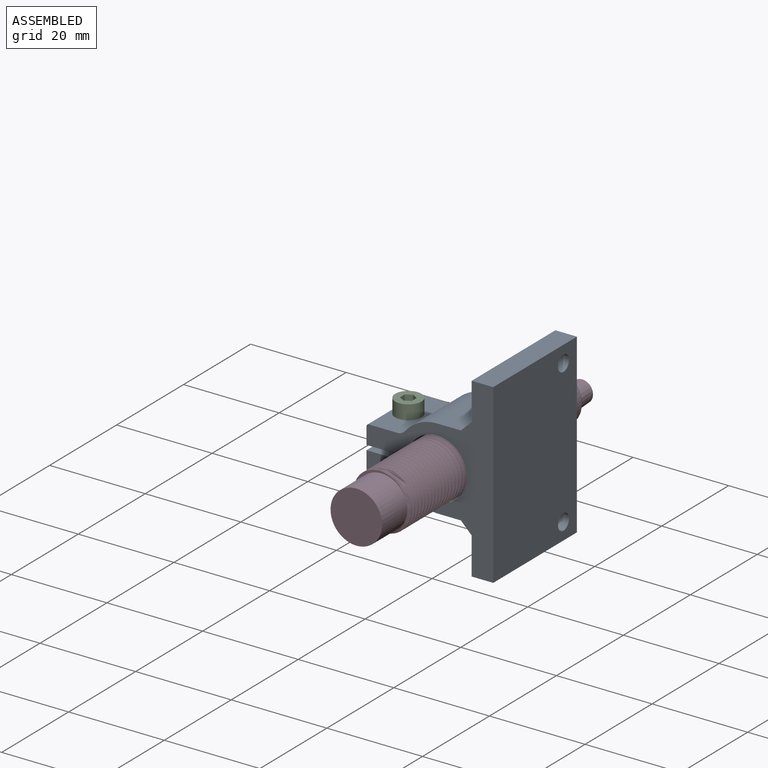
[diagram: assembled view]
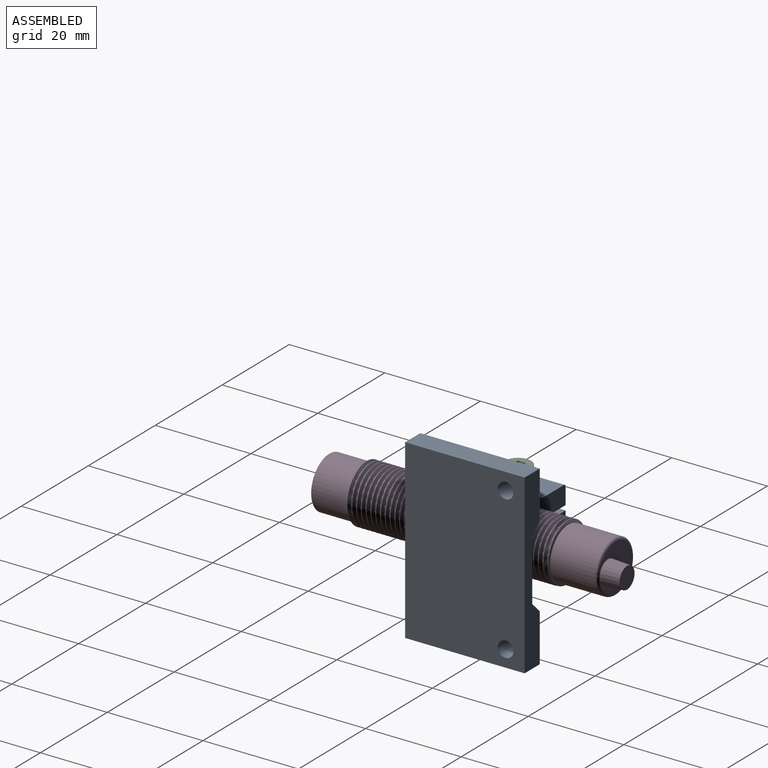
[diagram: assembled view, second angle]
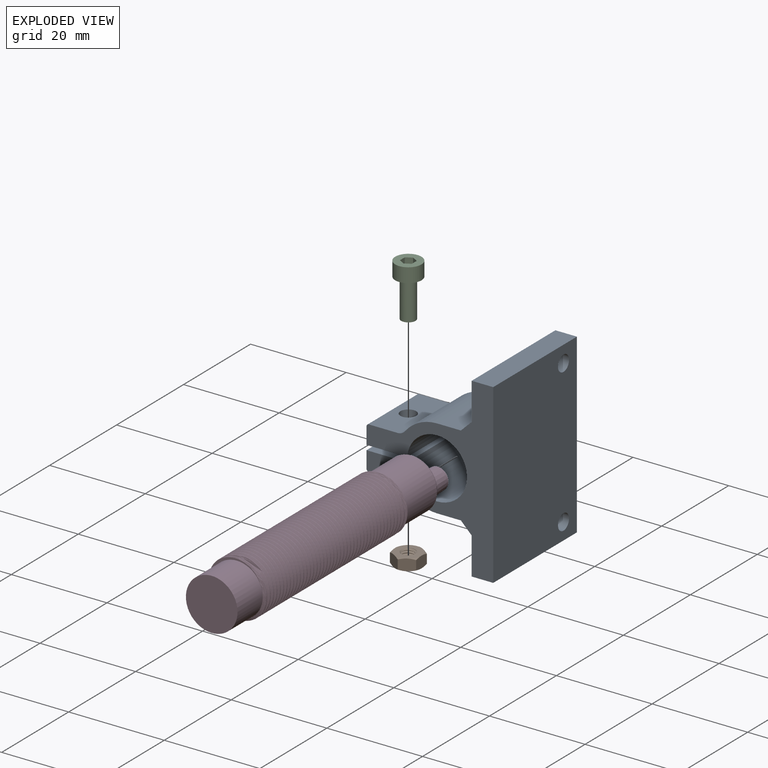
[diagram: exploded view]
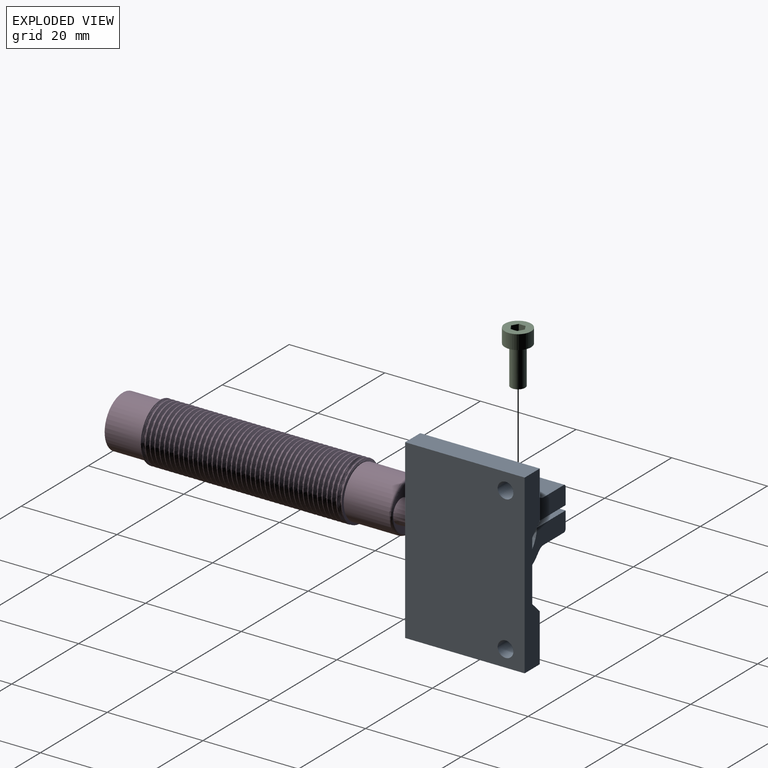
[diagram: exploded view, second angle]
ASSEMBLY  parts=4 mates=3
PART A: 39 faces, bbox 26.5x25x37 mm
  f0: plane 15x6mm, normal (0,0,-1), area 61.9mm2, adj f2,f8,f9,f23,f30,f31,f32,f33
  f1: plane 37x25mm, normal (1,0,0), area 907.9mm2, adj f3,f22,f23,f27,f28,f29
  f2: plane 24.25x21.5mm, normal (0,1,0), area 203.9mm2, adj f0,f4,f5,f6,f7,f8,f9,f10
  f3: plane 25x4.5mm, normal (0,0,-1), area 112.5mm2, adj f1,f4,f23,f27
  f4: plane 25x10mm, normal (-1,0,0), area 207.7mm2, adj f2,f3,f5,f23,f24,f27,f29
  f5: plane 15x2.25mm, normal (-0.71,0,-0.71), area 47.7mm2, adj f2,f4,f6,f23
  f6: plane 15x5mm, normal (0,0,-1), area 75mm2, adj f2,f5,f7,f23
  f7: cylinder r=8.5mm len=15mm, axis (0,1,0), area 115.2mm2, adj f2,f6,f8,f23
  f8: cylinder r=2mm len=15mm, axis (0,1,0), area 27.1mm2, adj f0,f2,f7,f23
  f9: cylinder r=0.5mm len=15mm, axis (0,1,0), area 11.8mm2, adj f0,f2,f10,f23
  f10: plane 15x3.5mm, normal (-1,0,0), area 52.5mm2, adj f2,f9,f11,f23
  f11: plane 15x8.52mm, normal (0,0,1), area 119.2mm2, adj f2,f10,f12,f23,f37
  f12: cylinder r=6.25mm len=15mm, axis (0,1,0), area 574mm2, adj f2,f11,f13,f23
  f13: plane 15x8.52mm, normal (0,0,-1), area 119.2mm2, adj f2,f12,f14,f23,f38
  f14: plane 15x3.5mm, normal (-1,0,0), area 52.5mm2, adj f2,f13,f15,f23
  f15: cylinder r=0.5mm len=15mm, axis (0,1,0), area 11.8mm2, adj f2,f14,f16,f23
  f16: plane 15x6mm, normal (0,0,1), area 81.4mm2, adj f2,f15,f17,f23,f38
  f17: cylinder r=2mm len=15mm, axis (0,1,0), area 27.1mm2, adj f2,f16,f18,f23
  f18: cylinder r=8.5mm len=15mm, axis (0,1,0), area 115.2mm2, adj f2,f17,f19,f23
  f19: plane 15x5mm, normal (0,0,1), area 75mm2, adj f2,f18,f20,f23
  f20: plane 15x2.25mm, normal (-0.71,0,0.71), area 47.7mm2, adj f2,f19,f21,f23
  f21: plane 25x10mm, normal (-1,0,0), area 207.7mm2, adj f2,f20,f22,f23,f26,f27,f28
  f22: plane 25x4.5mm, normal (0,0,1), area 112.5mm2, adj f1,f21,f23,f27
  f23: plane 37x26.5mm, normal (0,-1,0), area 337.2mm2, adj f0,f1,f3,f4,f5,f6,f7,f8
  f24: plane 10x2.25mm, normal (-0.71,0,0.71), area 31.8mm2, adj f2,f4,f25,f27
  f25: plane 12.5x10mm, normal (-1,0,0), area 125mm2, adj f2,f24,f26,f27
  f26: plane 10x2.25mm, normal (-0.71,0,-0.71), area 31.8mm2, adj f2,f21,f25,f27
  f27: plane 37x4.5mm, normal (0,1,0), area 133.3mm2, adj f1,f3,f4,f21,f22,f24,f25,f26
  f28: cylinder r=1.65mm len=4.5mm, axis (1,0,0), area 46.7mm2, adj f1,f21
  f29: cylinder r=1.65mm len=4.5mm, axis (1,0,0), area 46.7mm2, adj f1,f4
  f30: plane 3.29x2.5mm, normal (1,0,0), area 8.2mm2, adj f0,f31,f35,f36
  f31: plane 2.85x2.5mm, normal (0.5,-0.87,0), area 8.2mm2, adj f0,f30,f32,f36
  f32: plane 2.85x2.5mm, normal (-0.5,-0.87,0), area 8.2mm2, adj f0,f31,f33,f36
  f33: plane 3.29x2.5mm, normal (-1,0,0), area 8.2mm2, adj f0,f32,f34,f36
  f34: plane 2.85x2.5mm, normal (-0.5,0.87,0), area 8.2mm2, adj f0,f33,f35,f36
  f35: plane 2.85x2.5mm, normal (0.5,0.87,0), area 8.2mm2, adj f0,f30,f34,f36
  f36: plane 6.58x5.7mm, normal (0,0,-1), area 19.6mm2, adj f30,f31,f32,f33,f34,f35,f37
  f37: cylinder r=1.65mm len=3.3mm, axis (0,0,-1), area 15.6mm2, adj f11,f36
  f38: cylinder r=1.65mm len=4mm, axis (0,0,-1), area 41.5mm2, adj f13,f16
PART B: 27 faces, bbox 6.6x6.6x3 mm
  f0: cylinder r=1.5mm len=3mm, axis (0,0,-1), area 2.8mm2, adj f10,f11,f12,f13,f14
  f1: cylinder r=1.18mm len=2.35mm, axis (0,0,1), area 1.6mm2, adj f2,f3,f13,f14
  f2: cone r=1.5mm half-angle=45deg, axis (0,0,-1), area 2mm2, adj f1,f11,f13,f14
  f3: cone r=1.5mm half-angle=45deg, axis (0,0,1), area 2mm2, adj f1,f10,f12,f13,f14
  f4: plane 3.01x2.66mm, normal (-0.5,0.87,0), area 7.1mm2, adj f5,f9,f18,f19,f22,f23
  f5: plane 3.44x2.66mm, normal (-1,0,0), area 7.1mm2, adj f4,f6,f17,f18,f23,f24
  f6: plane 3.01x2.66mm, normal (-0.5,-0.87,0), area 7.1mm2, adj f5,f7,f16,f17,f24,f25
  f7: plane 3.01x2.66mm, normal (0.5,-0.87,0), area 7.1mm2, adj f6,f8,f15,f16,f25,f26
  f8: plane 3.44x2.66mm, normal (1,0,0), area 7.1mm2, adj f7,f9,f15,f20,f21,f26
  f9: plane 3.01x2.66mm, normal (0.5,0.87,0), area 7.1mm2, adj f4,f8,f19,f20,f21,f22
  f10: plane 5.5x5.5mm, normal (0,0,1), area 16.7mm2, adj f0,f3,f15,f16,f17,f18,f19,f20
  f11: plane 5.5x5.5mm, normal (0,0,-1), area 16.7mm2, adj f0,f2,f21,f22,f23,f24,f25,f26
  f12: plane 0x0mm, normal (0.5,0.87,0), area 0mm2, adj f0,f3,f13
  f13: bspline ~3x3mm, area 13.2mm2, adj f0,f1,f2,f3,f12
  f14: bspline ~3x3mm, area 13.2mm2, adj f0,f1,f2,f3
  f15: cone r=2.75mm half-angle=60deg, axis (0,0,-1), area 0.7mm2, adj f7,f8,f10
  f16: cone r=2.75mm half-angle=60deg, axis (0,0,-1), area 0.7mm2, adj f6,f7,f10
  f17: cone r=2.75mm half-angle=60deg, axis (0,0,-1), area 0.7mm2, adj f5,f6,f10
  f18: cone r=2.75mm half-angle=60deg, axis (0,0,-1), area 0.7mm2, adj f4,f5,f10
  f19: cone r=2.75mm half-angle=60deg, axis (0,0,-1), area 0.7mm2, adj f4,f9,f10
  f20: cone r=2.75mm half-angle=60deg, axis (0,0,-1), area 0.7mm2, adj f8,f9,f10
  f21: cone r=2.75mm half-angle=60deg, axis (0,0,1), area 0.7mm2, adj f8,f9,f11
  f22: cone r=2.75mm half-angle=60deg, axis (0,0,1), area 0.7mm2, adj f4,f9,f11
  f23: cone r=2.75mm half-angle=60deg, axis (0,0,1), area 0.7mm2, adj f4,f5,f11
  f24: cone r=2.75mm half-angle=60deg, axis (0,0,1), area 0.7mm2, adj f5,f6,f11
  f25: cone r=2.75mm half-angle=60deg, axis (0,0,1), area 0.7mm2, adj f6,f7,f11
  f26: cone r=2.75mm half-angle=60deg, axis (0,0,1), area 0.7mm2, adj f7,f8,f11
PART C: 12 faces, bbox 5.5x5.5x11 mm
  f0: plane 5.5x5.5mm, normal (0,0,1), area 18.3mm2, adj f1,f5,f6,f7,f8,f9,f10
  f1: cylinder r=2.75mm len=5.5mm, axis (0,0,-1), area 51.8mm2, adj f0,f2
  f2: plane 5.5x5.5mm, normal (0,0,-1), area 16.7mm2, adj f1,f3
  f3: cylinder r=1.5mm len=8mm, axis (0,0,-1), area 75.4mm2, adj f2,f4
  f4: plane 3x3mm, normal (0,0,-1), area 7.1mm2, adj f3
  f5: plane 1.3x1.25mm, normal (-0.5,-0.87,0), area 1.9mm2, adj f0,f6,f10,f11
  f6: plane 1.44x1.3mm, normal (-1,0,0), area 1.9mm2, adj f0,f5,f7,f11
  f7: plane 1.3x1.25mm, normal (-0.5,0.87,0), area 1.9mm2, adj f0,f6,f8,f11
  f8: plane 1.3x1.25mm, normal (0.5,0.87,0), area 1.9mm2, adj f0,f7,f9,f11
  f9: plane 1.44x1.3mm, normal (1,0,0), area 1.9mm2, adj f0,f8,f10,f11
  f10: plane 1.3x1.25mm, normal (0.5,-0.87,0), area 1.9mm2, adj f0,f5,f9,f11
  f11: plane 2.89x2.5mm, normal (0,0,1), area 5.4mm2, adj f5,f6,f7,f8,f9,f10
PART D: 13 faces, bbox 12.3x14.1x64.3 mm
  f0: cylinder r=5.4mm len=10.8mm, axis (0,0,-1), area 254.5mm2, adj f1,f3
  f1: plane 10.8x10.8mm, normal (0,0,-1), area 91.6mm2, adj f0
  f2: plane 11.7x11.66mm, normal (0,0,1), area 10.1mm2, adj f4,f6,f7,f8,f9
  f3: plane 11.7x11.66mm, normal (0,0,-1), area 10.1mm2, adj f0,f4,f7,f8,f9
  f4: cylinder r=6mm len=42.5mm, axis (0,0,-1), area -274.6mm2, adj f2,f3,f8,f9
  f5: plane 9.8x9.8mm, normal (0,0,1), area 56.6mm2, adj f10,f11
  f6: cylinder r=5.4mm len=10.8mm, axis (0,0,-1), area 322.3mm2, adj f2,f10
  f7: bspline ~43.25x12.61mm, area 407.2mm2, adj f2,f3,f8,f9
  f8: bspline ~43.31x13.86mm, area 958.3mm2, adj f2,f3,f4,f7
  f9: bspline ~43.15x13.86mm, area 953.6mm2, adj f2,f3,f4,f7
  f10: torus R=4.9mm, axis (0,0,1), area 25.8mm2, adj f5,f6
  f11: cone r=2.45mm half-angle=3deg, axis (0,0,-1), area 59mm2, adj f5,f12
  f12: plane 4.48x4.48mm, normal (0,0,1), area 15.8mm2, adj f11
PLACE A at identity
PLACE B rot(axis=(0,1,0),180deg) t=(-45.16,-19.72,16.4)mm
PLACE C t=(-65.16,-19.72,24.1)mm
PLACE D rot(axis=(-1,0,0),90deg) t=(-33.91,-51.32,19.6)mm
MATE fastened B.f0 <-> A.f37  axis (0,0,1) through (-45.16,-19.72,17.6)mm
MATE slider D.f0 <-> A.f7  axis (0,-1,0) through (-33.91,-51.32,19.6)mm
MATE fastened C.f1 <-> A.f37  axis (0,0,-1) through (-45.16,-19.72,24.1)mm
